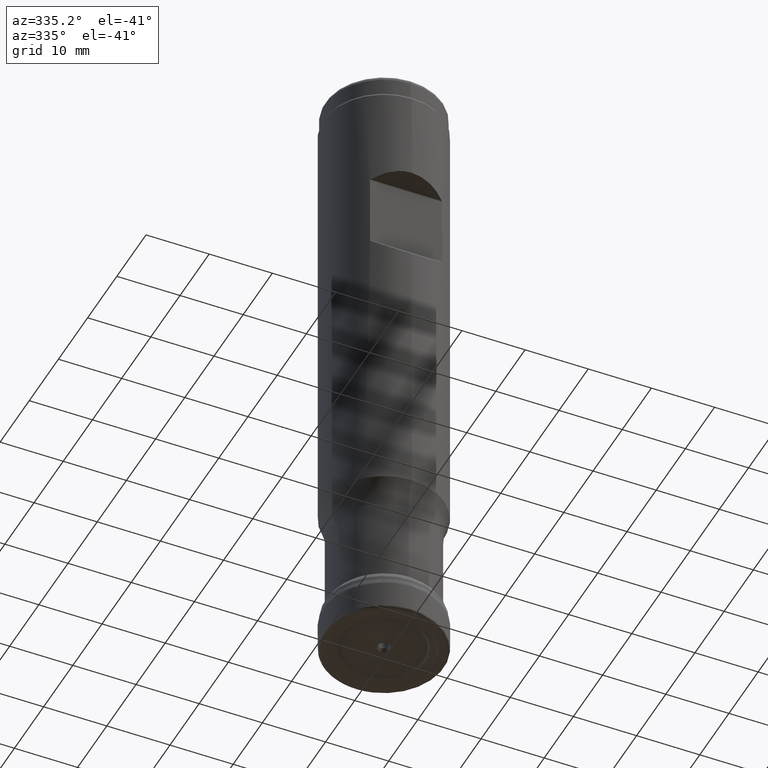
[diagram: clean part render]
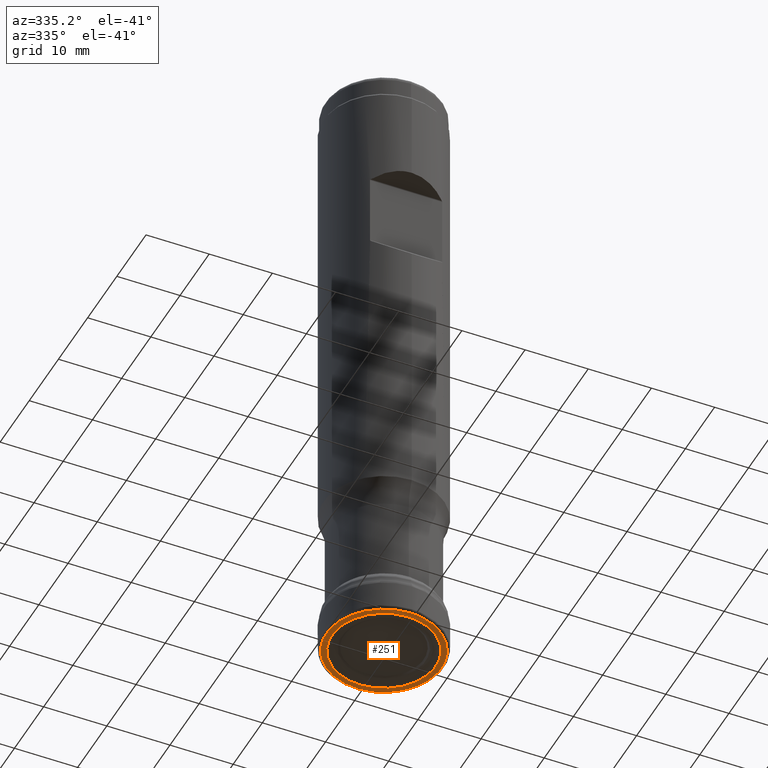
[diagram: same view with one face highlighted and labeled with its STEP entity id]
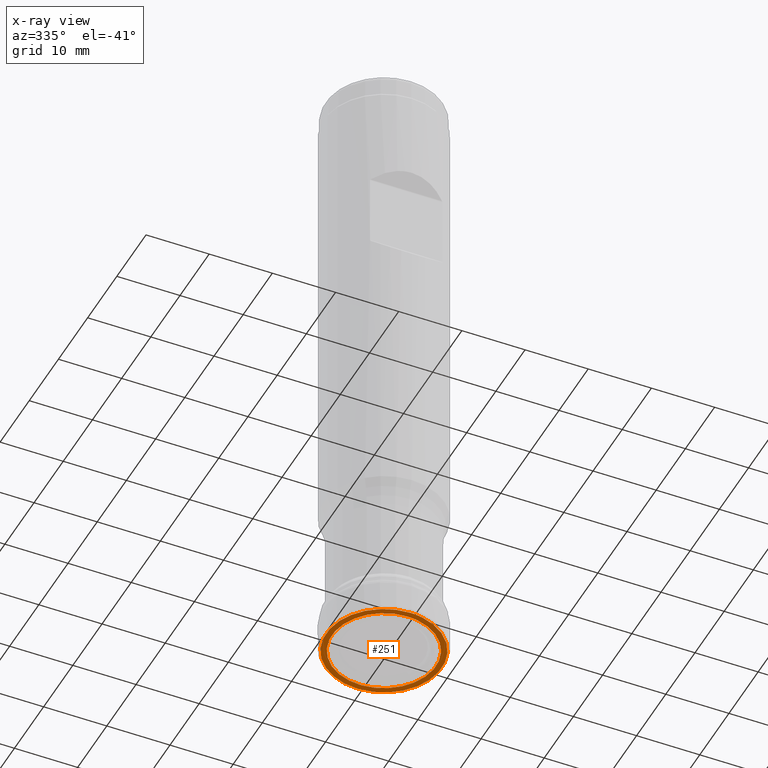
[diagram: x-ray of the same camera — body ghosted, the highlighted face saturated]
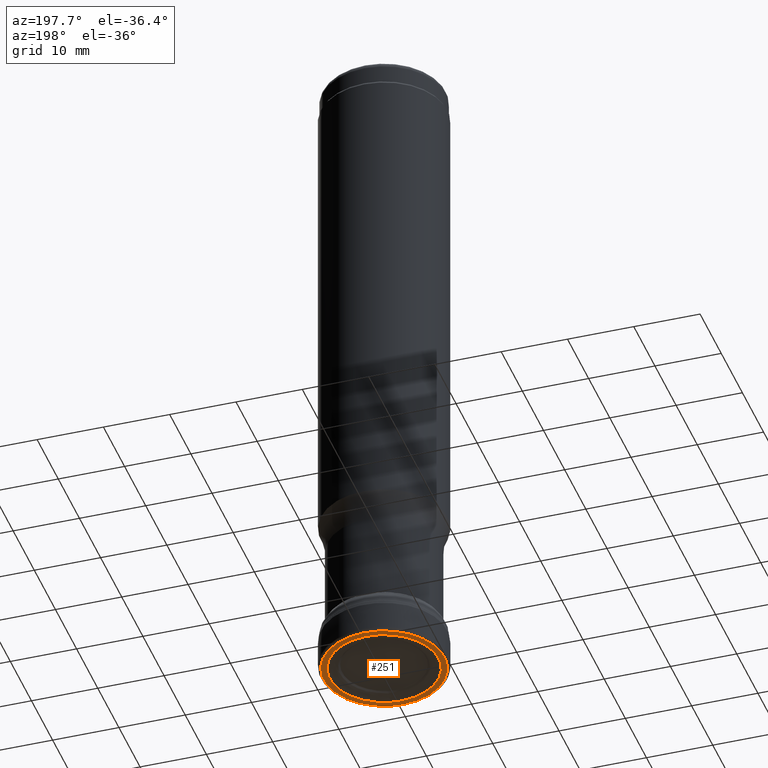
[diagram: same view with one face highlighted and labeled with its STEP entity id]
A machine part, auxiliary view. The second image highlights one B-rep face of the part: STEP entity #251.
The next image is the same camera in x-ray: the body ghosted, the highlighted face saturated — about 0% of this face is hidden behind the body in this view.
A second angle (auxiliary view) of the same face is appended — the face is thin or edge-on in the first view.
In plain terms, the highlighted face is a SurfaceOfRevolution surface.
Its self-contained STEP definition (entity closure, byte-faithful):
#126=SURFACE_OF_REVOLUTION('',#177,#147);
#147=AXIS1_PLACEMENT('',#1493,#977);
#177=LINE('',#1492,#189);
#189=VECTOR('',#976,0.937230342100064);
#251=ADVANCED_FACE('',(#341,#342),#126,.F.);
#341=FACE_BOUND('',#431,.T.);
#342=FACE_BOUND('',#432,.T.);
#431=EDGE_LOOP('',(#539));
#432=EDGE_LOOP('',(#540));
#539=ORIENTED_EDGE('',*,*,#648,.T.);
#540=ORIENTED_EDGE('',*,*,#649,.F.);
#594=VERTEX_POINT('',#1481);
#595=VERTEX_POINT('',#1491);
#648=EDGE_CURVE('',#594,#594,#690,.T.);
#649=EDGE_CURVE('',#595,#595,#691,.T.);
#690=CIRCLE('',#802,8.21641762957809);
#691=CIRCLE('',#803,9.13755410644158);
#802=AXIS2_PLACEMENT_3D('',#1480,#971,#972);
#803=AXIS2_PLACEMENT_3D('',#1490,#974,#975);
#971=DIRECTION('',(0.,1.17145536458252E-15,1.));
#972=DIRECTION('',(0.,-1.,1.17145372240531E-15));
#974=DIRECTION('',(0.,1.17145536458252E-15,1.));
#975=DIRECTION('',(0.,-1.,1.17145536458252E-15));
#976=DIRECTION('',(-0.999999679474242,0.000139032605374878,0.000788493087195849));
#977=DIRECTION('',(0.,1.17145536458252E-15,1.));
#1480=CARTESIAN_POINT('',(0.,8.65698706035261E-19,0.000738994188091642));
#1481=CARTESIAN_POINT('',(0.,-8.21641762957809,0.000738994188101267));
#1490=CARTESIAN_POINT('',(0.,5.44751448231519E-30,4.65021088042611E-15));
#1491=CARTESIAN_POINT('',(0.,-9.13755410644158,1.53544476575802E-14));
#1492=CARTESIAN_POINT('',(8.99638233114553,-1.59999999999999,6.52453946375814E-15));
#1493=CARTESIAN_POINT('',(0.,0.,0.));